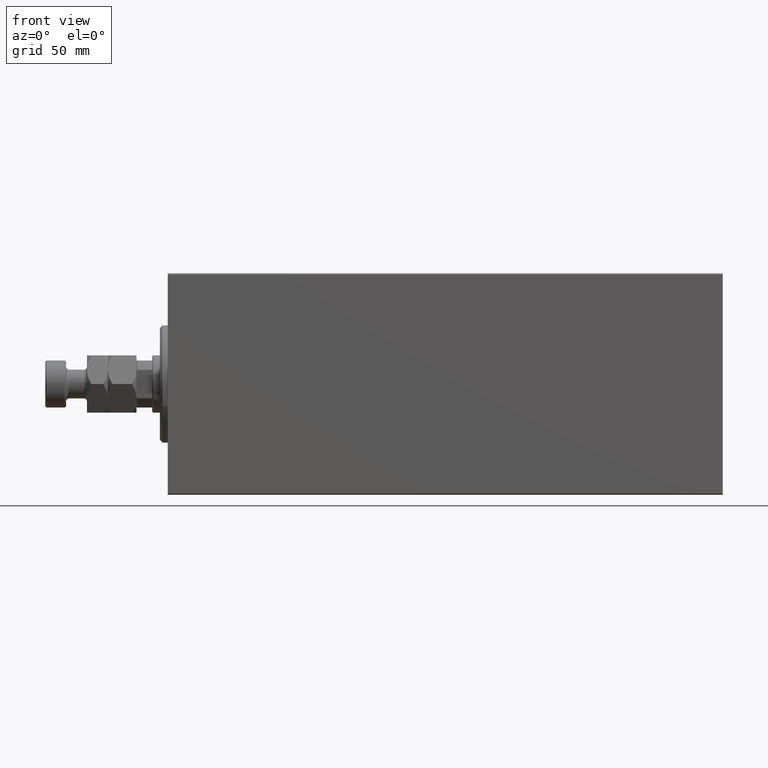
[diagram: clean part render]
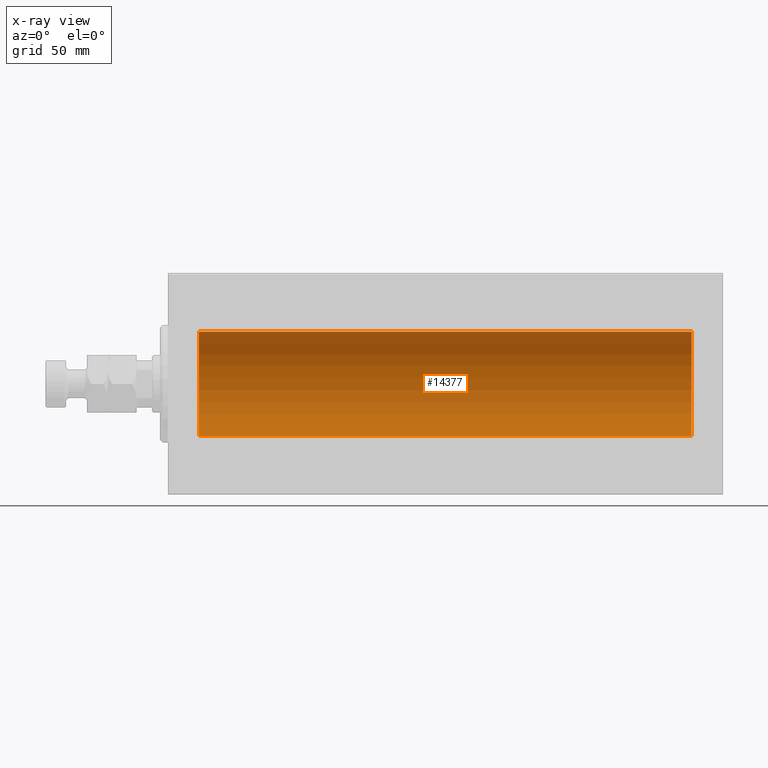
[diagram: x-ray — body ghosted, one internal face saturated and labeled with its STEP entity id]
A machine part, front view, then the same camera in x-ray: the body is ghosted and one INTERNAL B-rep face — a face not visible from any outside direction — is saturated and labeled: STEP entity #14377.
In plain terms, the highlighted cylindrical surface (partial cylindrical patch) has radius 20 mm, axis along (-1, -0, -0).
Its self-contained STEP definition (entity closure, byte-faithful):
#380 = DIRECTION ( 'NONE',  ( 0.000000000000000000, 0.000000000000000000, 1.000000000000000000 ) ) ;
#1873 = EDGE_CURVE ( 'NONE', #19296, #29295, #42464, .T. ) ;
#2118 = VECTOR ( 'NONE', #24006, 1000.000000000000000 ) ;
#2307 = VERTEX_POINT ( 'NONE', #32516 ) ;
#3238 = CARTESIAN_POINT ( 'NONE',  ( 12.00000000000001066, 2.449293598294706513E-15, -20.00000000000000000 ) ) ;
#3260 = DIRECTION ( 'NONE',  ( 0.000000000000000000, 0.000000000000000000, 1.000000000000000000 ) ) ;
#3930 = VECTOR ( 'NONE', #39229, 1000.000000000000000 ) ;
#3975 = ORIENTED_EDGE ( 'NONE', *, *, #15125, .T. ) ;
#4923 = FACE_OUTER_BOUND ( 'NONE', #35505, .T. ) ;
#7730 = EDGE_CURVE ( 'NONE', #2307, #19296, #24556, .T. ) ;
#8142 = CARTESIAN_POINT ( 'NONE',  ( 201.0000000000000000, 0.000000000000000000, 0.000000000000000000 ) ) ;
#10152 = DIRECTION ( 'NONE',  ( -1.000000000000000000, 0.000000000000000000, 0.000000000000000000 ) ) ;
#11385 = VERTEX_POINT ( 'NONE', #35204 ) ;
#14377 = ADVANCED_FACE ( 'NONE', ( #4923 ), #29701, .F. ) ;
#15125 = EDGE_CURVE ( 'NONE', #2307, #11385, #20792, .T. ) ;
#15665 = CIRCLE ( 'NONE', #36134, 20.00000000000000000 ) ;
#17358 = ORIENTED_EDGE ( 'NONE', *, *, #1873, .F. ) ;
#19296 = VERTEX_POINT ( 'NONE', #21009 ) ;
#20792 = LINE ( 'NONE', #41446, #2118 ) ;
#21009 = CARTESIAN_POINT ( 'NONE',  ( 201.0000000000000000, 2.449293598294706513E-15, -20.00000000000000000 ) ) ;
#24006 = DIRECTION ( 'NONE',  ( -1.000000000000000000, -0.000000000000000000, -0.000000000000000000 ) ) ;
#24556 = CIRCLE ( 'NONE', #37740, 20.00000000000000000 ) ;
#25158 = DIRECTION ( 'NONE',  ( -1.000000000000000000, 0.000000000000000000, 0.000000000000000000 ) ) ;
#25474 = ORIENTED_EDGE ( 'NONE', *, *, #32257, .T. ) ;
#28831 = CARTESIAN_POINT ( 'NONE',  ( 12.00000000000001066, 0.000000000000000000, 0.000000000000000000 ) ) ;
#29295 = VERTEX_POINT ( 'NONE', #3238 ) ;
#29701 = CYLINDRICAL_SURFACE ( 'NONE', #37276, 20.00000000000000000 ) ;
#32257 = EDGE_CURVE ( 'NONE', #11385, #29295, #15665, .T. ) ;
#32516 = CARTESIAN_POINT ( 'NONE',  ( 201.0000000000000000, 0.000000000000000000, 20.00000000000000000 ) ) ;
#32569 = CARTESIAN_POINT ( 'NONE',  ( 201.0000000000000000, 2.449293598294706513E-15, -20.00000000000000000 ) ) ;
#33593 = DIRECTION ( 'NONE',  ( 0.000000000000000000, 0.000000000000000000, 1.000000000000000000 ) ) ;
#34435 = CARTESIAN_POINT ( 'NONE',  ( 201.0000000000000000, 0.000000000000000000, 0.000000000000000000 ) ) ;
#35204 = CARTESIAN_POINT ( 'NONE',  ( 12.00000000000001066, 0.000000000000000000, 20.00000000000000000 ) ) ;
#35505 = EDGE_LOOP ( 'NONE', ( #17358, #35905, #3975, #25474 ) ) ;
#35905 = ORIENTED_EDGE ( 'NONE', *, *, #7730, .F. ) ;
#36134 = AXIS2_PLACEMENT_3D ( 'NONE', #28831, #25158, #380 ) ;
#37276 = AXIS2_PLACEMENT_3D ( 'NONE', #8142, #43705, #33593 ) ;
#37740 = AXIS2_PLACEMENT_3D ( 'NONE', #34435, #10152, #3260 ) ;
#39229 = DIRECTION ( 'NONE',  ( -1.000000000000000000, -0.000000000000000000, -0.000000000000000000 ) ) ;
#41446 = CARTESIAN_POINT ( 'NONE',  ( 201.0000000000000000, 0.000000000000000000, 20.00000000000000000 ) ) ;
#42464 = LINE ( 'NONE', #32569, #3930 ) ;
#43705 = DIRECTION ( 'NONE',  ( -1.000000000000000000, -0.000000000000000000, -0.000000000000000000 ) ) ;